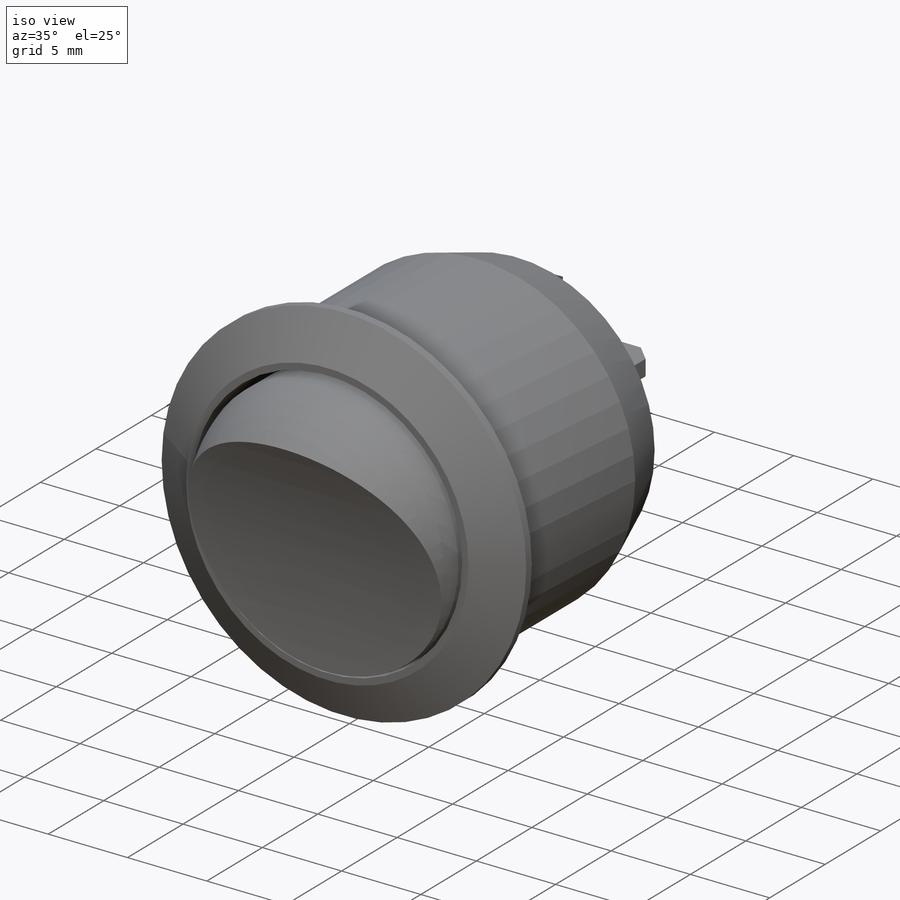
[diagram: iso view]
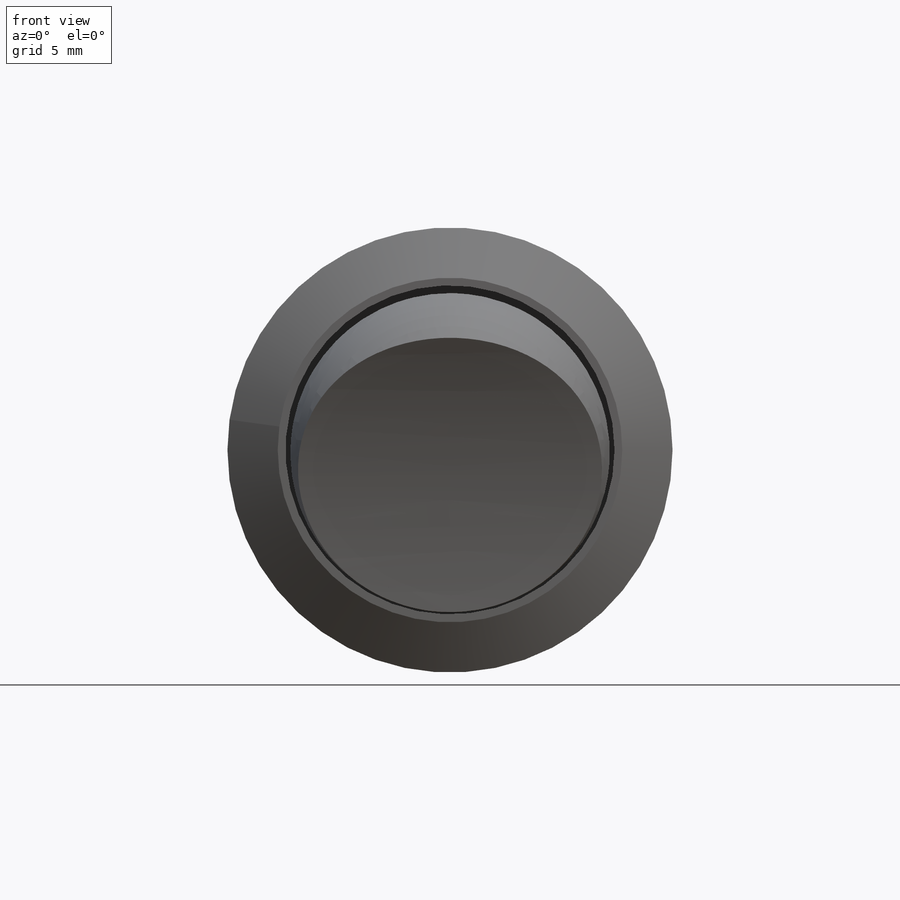
[diagram: front view]
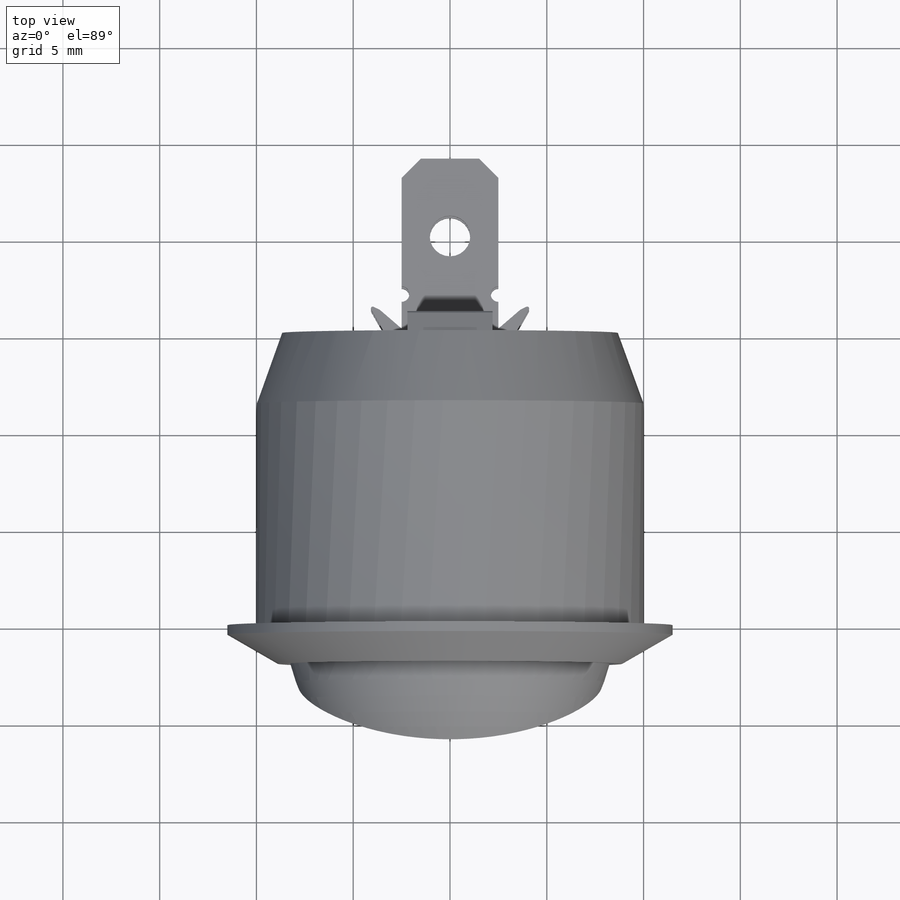
[diagram: top view]
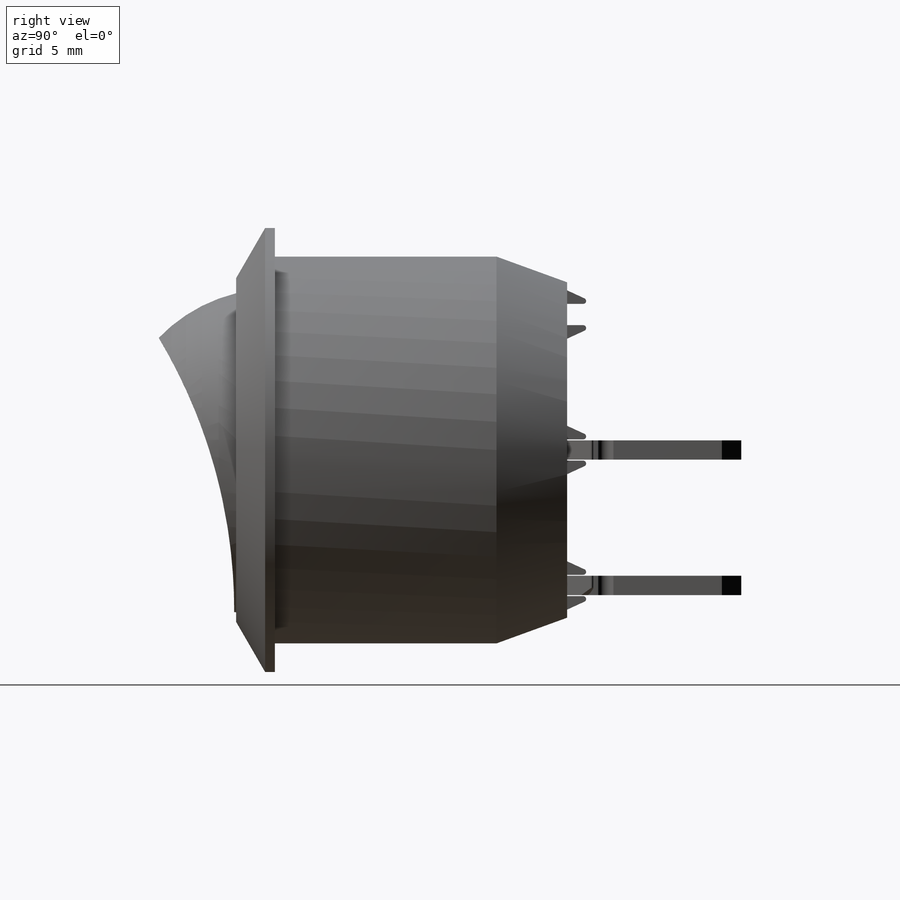
[diagram: right view]
SOLIDWORKS PART (.sldprt)
format: sldprt  version: not decoded by parser v0  size: 438,272 bytes
history: native  units: mm
features: sketch x13, extrude x7, cut_extrude x4, chamfer x3, cut_revolve x2, plane x2, mirror x2, material x1 (+16 scaffold rows collapsed)
feature tree (50):
  scaffold x16  (default folders/planes/origin — collapsed)
  material  "Material <not specified>"
  sketch  "Sketch1"  dims[D1=20.0mm]
  extrude  "Boss-Extrude1"  Depth=15mm
  sketch  "Sketch2"  dims[D1=23.0mm]
  extrude  "Boss-Extrude2"  Depth=2mm
  sketch  "Sketch3"  dims[D1=17.0mm]
  cut_extrude  "Cut-Extrude1"  Depth=2mm
  sketch  "Sketch4"  dims[D1=14.0mm D2=17.0mm]
  cut_extrude  "Cut-Extrude2"  [1 undecoded]
  sketch  "Sketch5"  dims[D1=5.0mm D2=1.0mm D3=5.0mm D4=1.0mm D5=6.0mm]
  extrude  "Boss-Extrude3"  Depth=1mm
  sketch  "Sketch6"  dims[D1=6.0mm D2=1.0mm D3=5.0mm]
  extrude  "Boss-Extrude4"  Depth=9mm
  sketch  "Sketch7"  dims[D1=16.5mm D2=0.15mm]
  extrude  "Boss-Extrude5"  Depth=6mm
  sketch  "Sketch8"  dims[c1.D1=16.5mm c2.D1=90.0deg c2.D2=~14.197413mm]
  cut_revolve  "Cut-Revolve1"  Angle=360deg
  sketch  "Sketch9"  dims[D1=0.1mm]
  cut_extrude  "Cut-Extrude3"  Depth=16mm
  sketch  "Sketch10"  dims[c1.D2=2.1mm c1.D3=0.8mm c1.D4=1.0mm c1.D1=4.0mm c2.D4=2.0mm]
  cut_extrude  "Cut-Extrude4"  [1 undecoded]
  chamfer  "Chamfer1"  Distance=1mm Angle=45deg
  chamfer  "Chamfer2"  Distance=1mm Angle=45deg
  sketch  "Sketch11"  dims[D1=0.1mm]
  extrude  "Boss-Extrude8"  Depth=1mm
  plane  "Plane1"  Offset=3.5mm
  sketch  "Sketch12"  dims[D3=0.15mm D1=0.7mm D2=0.05mm]
  extrude  "Boss-Extrude9"  Depth=2.2mm
  mirror  "Mirror4"
  plane  "Plane2"  Offset=3.5mm
  mirror  "Mirror5"
  sketch  "Sketch13"  dims[c1.D1=~5.146355mm c2.D1=20.0deg c2.D2=~3.647182mm]
  cut_revolve  "Cut-Revolve2"  Angle=360deg
  chamfer  "Chamfer4"  Distance=1.5mm Angle=60deg
decode coverage: 27 of 31 modeling features carry decoded parameters
note: ~ marks probable driven/reference dimensions
note: 2 parameter values undecoded
note: suppression state not decoded; provenance and decode notes live in map.json
